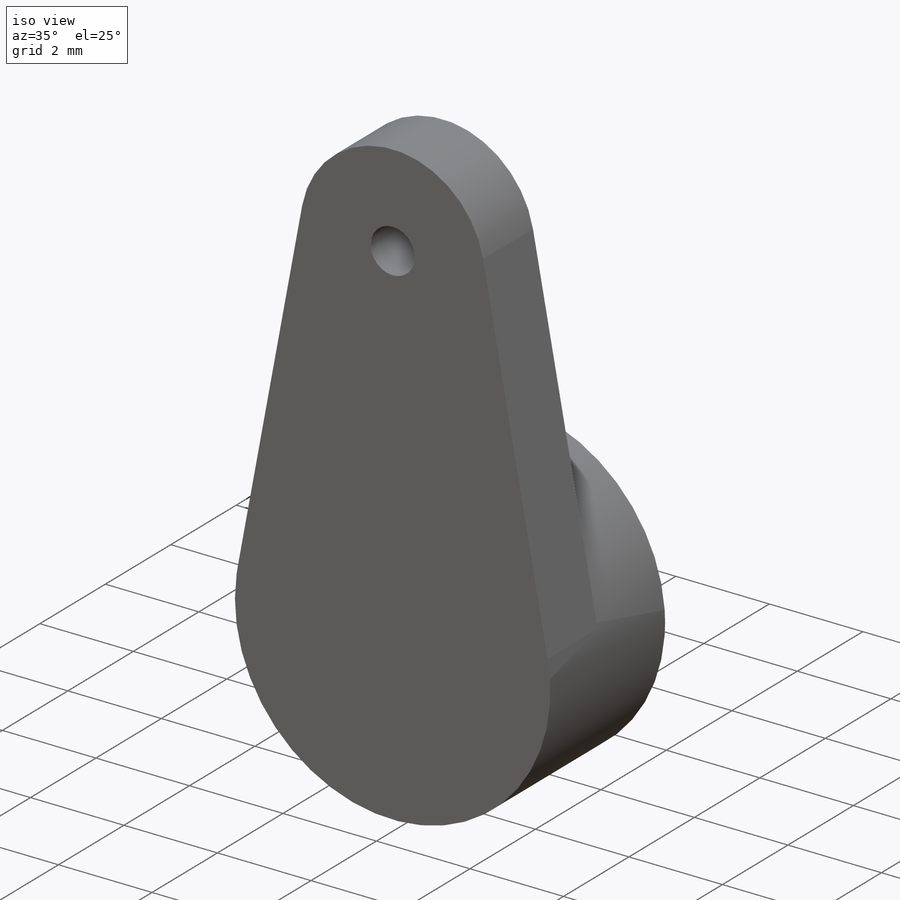
[diagram: iso view]
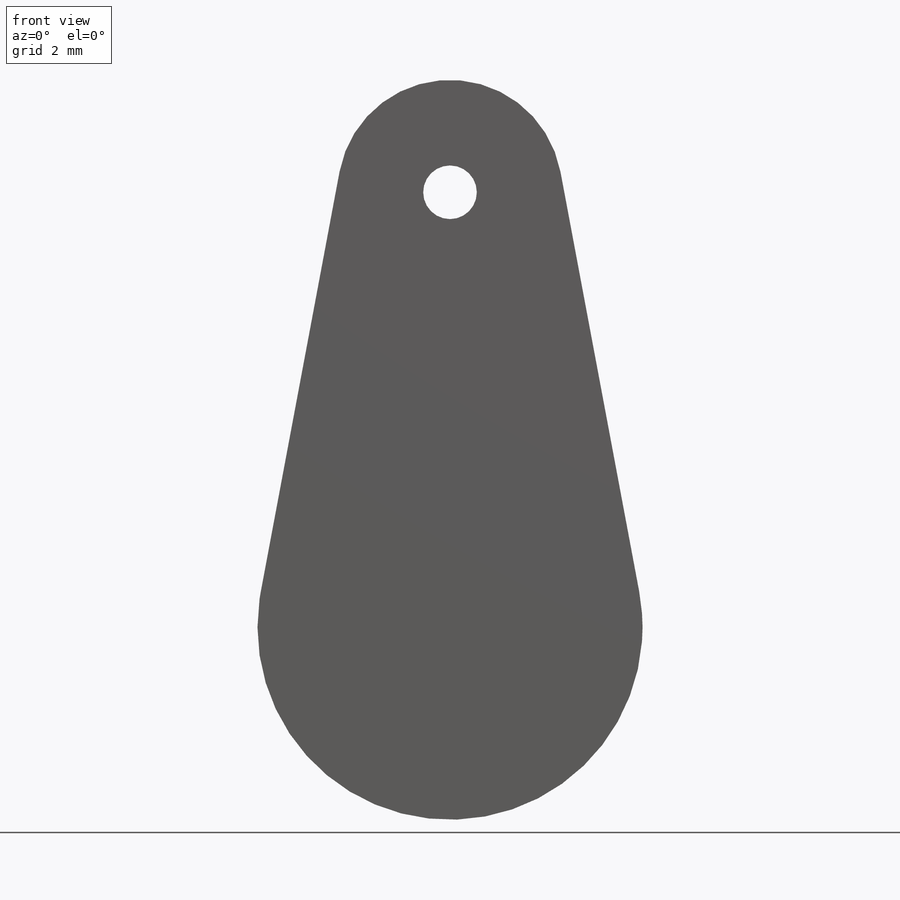
[diagram: front view]
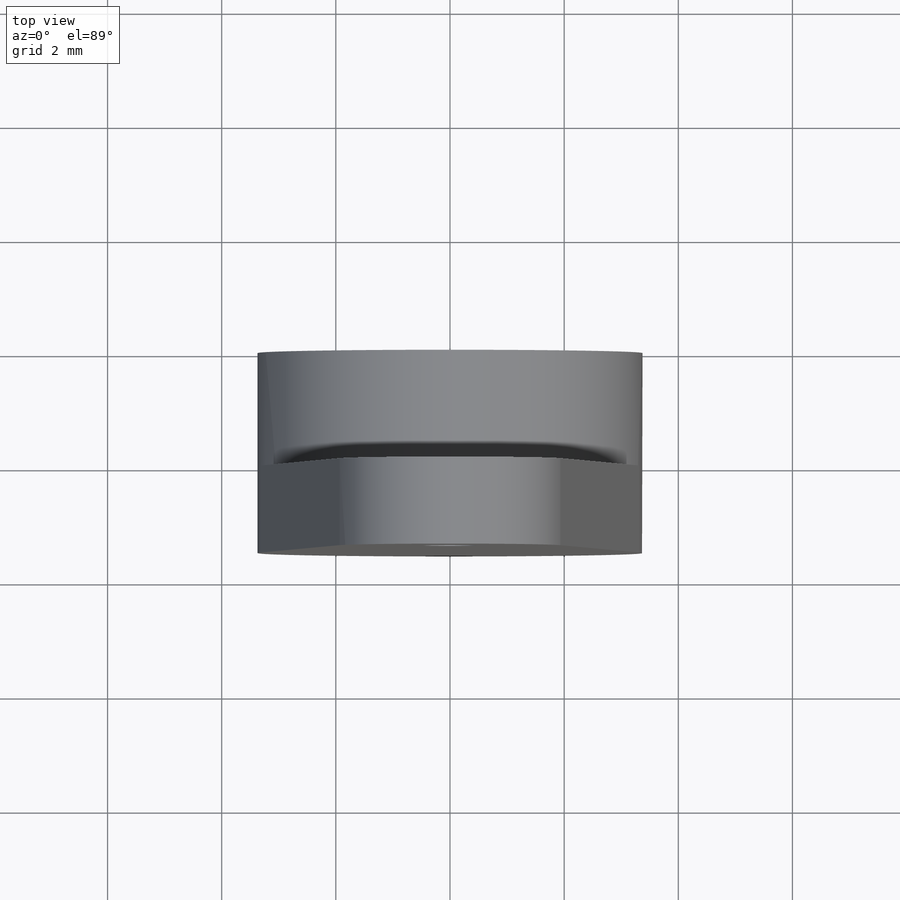
[diagram: top view]
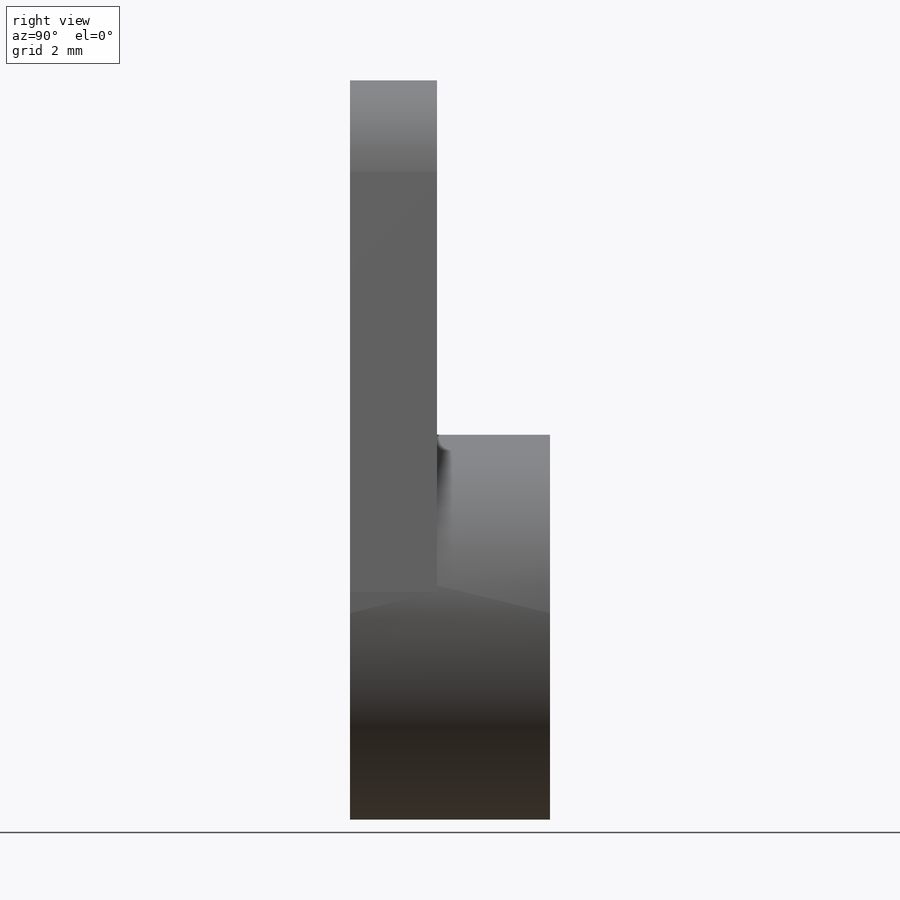
[diagram: right view]
SOLIDWORKS PART (.sldprt)
format: sldprt  version: not decoded by parser v0  size: 161,792 bytes
history: native  units: mm
features: sketch x4, extrude x4, material x1 (+12 scaffold rows collapsed)
feature tree (21):
  scaffold x12  (default folders/planes/origin — collapsed)
  material  "Material <not specified>"
  sketch  "Sketch1"  dims[D1=~4.66852mm D2=~6.74624mm]
  extrude  "Boss-Extrude1"  Depth=3.5052mm
  sketch  "Sketch2"  dims[D1=3.937mm D2=0.9398mm D3=7.62mm]
  extrude  "Boss-Extrude2"  Depth=1.524mm
  sketch  "Sketch3"
  extrude  "Boss-Extrude3"  Depth=2.6924mm
  sketch  "Sketch4"  dims[D1=~2.620436mm]
  extrude  "Boss-Extrude5"  Depth=6.35mm
decode coverage: 7 of 8 modeling features carry decoded parameters
note: ~ marks probable driven/reference dimensions
note: suppression state not decoded; provenance and decode notes live in map.json
